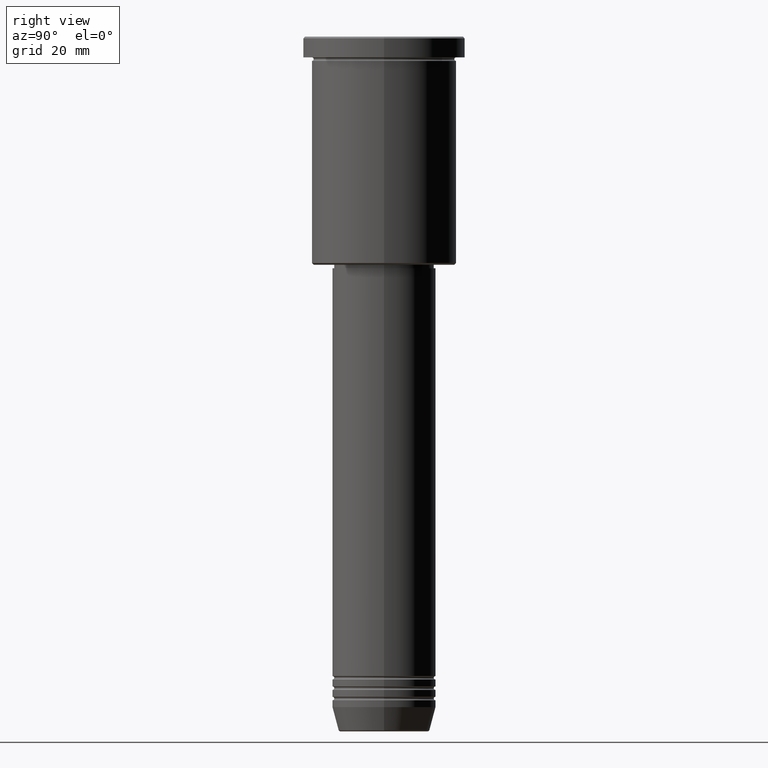
[diagram: clean part render]
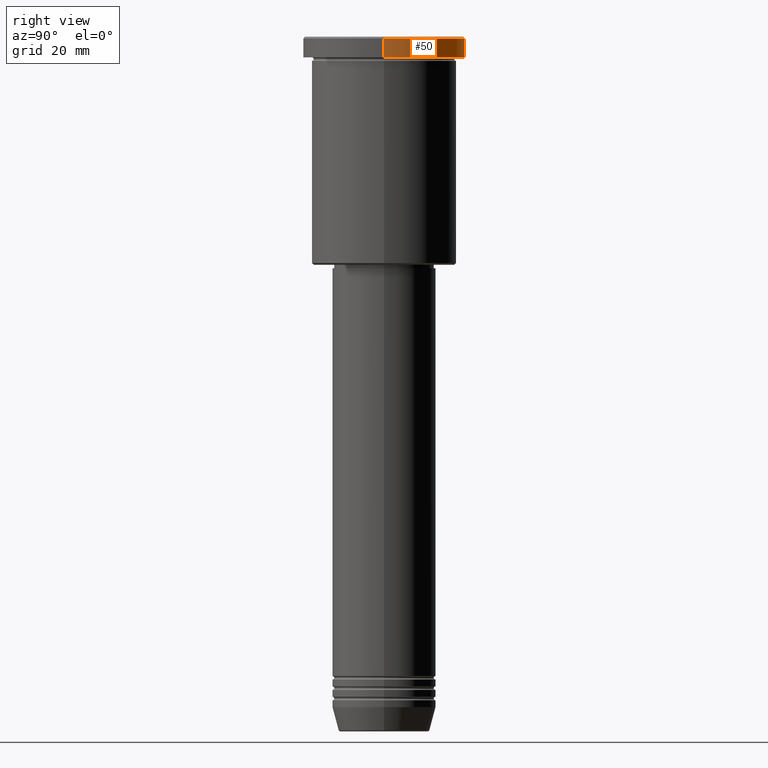
[diagram: same view with one face highlighted and labeled with its STEP entity id]
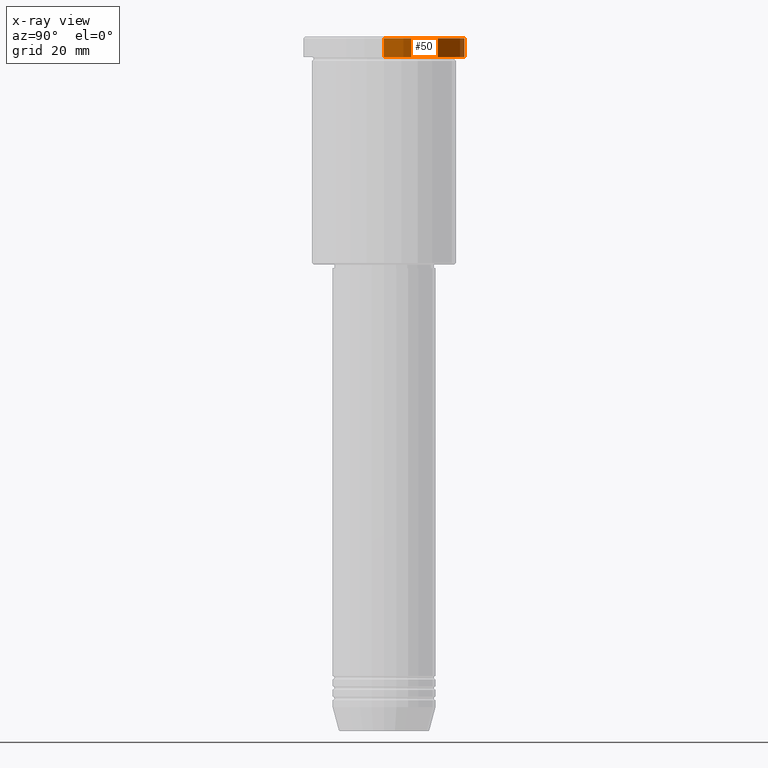
[diagram: x-ray of the same camera — body ghosted, the highlighted face saturated]
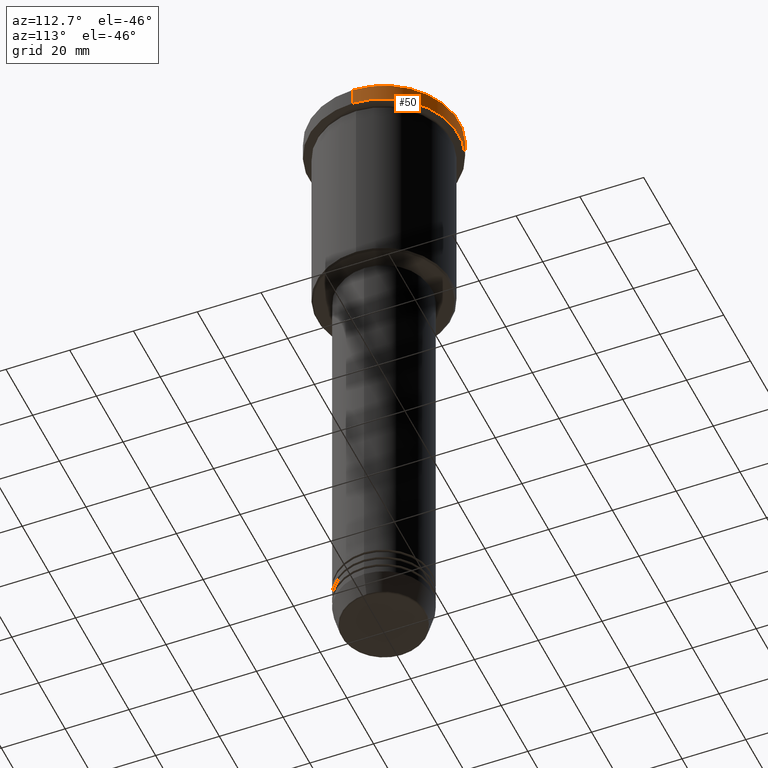
[diagram: same view with one face highlighted and labeled with its STEP entity id]
A machine part, right view. The second image highlights one B-rep face of the part: STEP entity #50.
The next image is the same camera in x-ray: the body ghosted, the highlighted face saturated — about 0% of this face is hidden behind the body in this view.
A second angle (auxiliary view) of the same face is appended — the face is thin or edge-on in the first view.
In plain terms, the highlighted cylindrical surface (partial cylindrical patch) has radius 23.5 mm, axis along (-0, -0, 1).
Its self-contained STEP definition (entity closure, byte-faithful):
#14 = EDGE_CURVE ( 'NONE', #548, #470, #605, .T. ) ;
#50 = ADVANCED_FACE ( 'NONE', ( #1029 ), #326, .T. ) ;
#77 = VECTOR ( 'NONE', #257, 1000.000000000000000 ) ;
#90 = EDGE_CURVE ( 'NONE', #1116, #264, #361, .T. ) ;
#128 = DIRECTION ( 'NONE',  ( 0.000000000000000000, 0.000000000000000000, -1.000000000000000000 ) ) ;
#193 = VECTOR ( 'NONE', #918, 1000.000000000000000 ) ;
#201 = ORIENTED_EDGE ( 'NONE', *, *, #14, .T. ) ;
#257 = DIRECTION ( 'NONE',  ( -0.000000000000000000, -0.000000000000000000, 1.000000000000000000 ) ) ;
#264 = VERTEX_POINT ( 'NONE', #1114 ) ;
#303 = CIRCLE ( 'NONE', #658, 23.50000000000000000 ) ;
#322 = CARTESIAN_POINT ( 'NONE',  ( -23.50000000000000000, 2.877919977996280320E-15, -0.5000000000000004441 ) ) ;
#326 = CYLINDRICAL_SURFACE ( 'NONE', #637, 23.50000000000000000 ) ;
#361 = LINE ( 'NONE', #824, #193 ) ;
#404 = DIRECTION ( 'NONE',  ( 1.000000000000000000, 0.000000000000000000, 0.000000000000000000 ) ) ;
#437 = CIRCLE ( 'NONE', #974, 23.50000000000000000 ) ;
#452 = ORIENTED_EDGE ( 'NONE', *, *, #90, .F. ) ;
#470 = VERTEX_POINT ( 'NONE', #322 ) ;
#548 = VERTEX_POINT ( 'NONE', #619 ) ;
#554 = CARTESIAN_POINT ( 'NONE',  ( 0.000000000000000000, 0.000000000000000000, -0.5000000000000004441 ) ) ;
#565 = DIRECTION ( 'NONE',  ( 1.000000000000000000, 0.000000000000000000, 0.000000000000000000 ) ) ;
#600 = ORIENTED_EDGE ( 'NONE', *, *, #704, .T. ) ;
#605 = LINE ( 'NONE', #764, #77 ) ;
#619 = CARTESIAN_POINT ( 'NONE',  ( -23.50000000000000000, 2.877919977996280320E-15, -5.999999999999994671 ) ) ;
#637 = AXIS2_PLACEMENT_3D ( 'NONE', #886, #801, #1154 ) ;
#658 = AXIS2_PLACEMENT_3D ( 'NONE', #835, #878, #404 ) ;
#659 = ORIENTED_EDGE ( 'NONE', *, *, #811, .T. ) ;
#704 = EDGE_CURVE ( 'NONE', #470, #264, #437, .T. ) ;
#764 = CARTESIAN_POINT ( 'NONE',  ( -23.50000000000000000, 2.877919977996280320E-15, 0.000000000000000000 ) ) ;
#801 = DIRECTION ( 'NONE',  ( -0.000000000000000000, -0.000000000000000000, 1.000000000000000000 ) ) ;
#811 = EDGE_CURVE ( 'NONE', #1116, #548, #303, .T. ) ;
#824 = CARTESIAN_POINT ( 'NONE',  ( 23.50000000000000000, 0.000000000000000000, 0.000000000000000000 ) ) ;
#835 = CARTESIAN_POINT ( 'NONE',  ( 0.000000000000000000, 0.000000000000000000, -5.999999999999994671 ) ) ;
#878 = DIRECTION ( 'NONE',  ( -0.000000000000000000, -0.000000000000000000, 1.000000000000000000 ) ) ;
#886 = CARTESIAN_POINT ( 'NONE',  ( 0.000000000000000000, 0.000000000000000000, 0.000000000000000000 ) ) ;
#918 = DIRECTION ( 'NONE',  ( -0.000000000000000000, -0.000000000000000000, 1.000000000000000000 ) ) ;
#934 = CARTESIAN_POINT ( 'NONE',  ( 23.50000000000000000, 0.000000000000000000, -5.999999999999994671 ) ) ;
#974 = AXIS2_PLACEMENT_3D ( 'NONE', #554, #128, #565 ) ;
#1000 = EDGE_LOOP ( 'NONE', ( #659, #201, #600, #452 ) ) ;
#1029 = FACE_OUTER_BOUND ( 'NONE', #1000, .T. ) ;
#1114 = CARTESIAN_POINT ( 'NONE',  ( 23.50000000000000000, 0.000000000000000000, -0.5000000000000004441 ) ) ;
#1116 = VERTEX_POINT ( 'NONE', #934 ) ;
#1154 = DIRECTION ( 'NONE',  ( 1.000000000000000000, 0.000000000000000000, 0.000000000000000000 ) ) ;